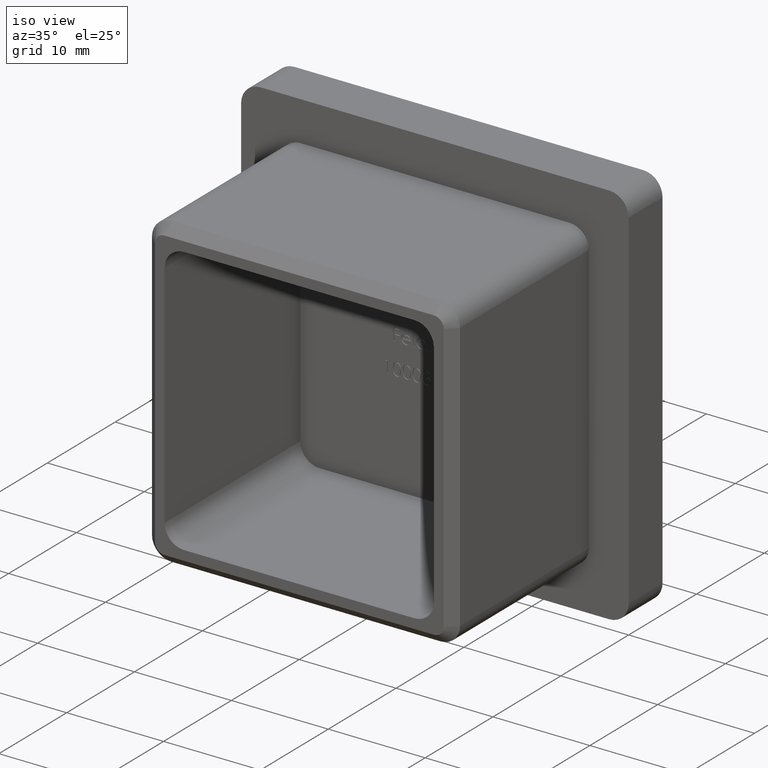
[diagram: clean part render]
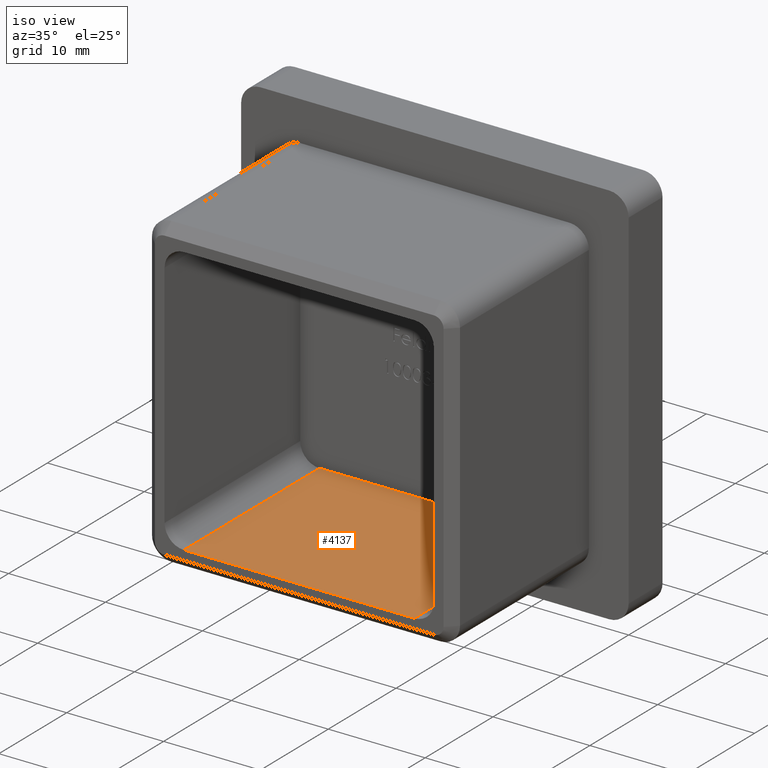
[diagram: same view with one face highlighted and labeled with its STEP entity id]
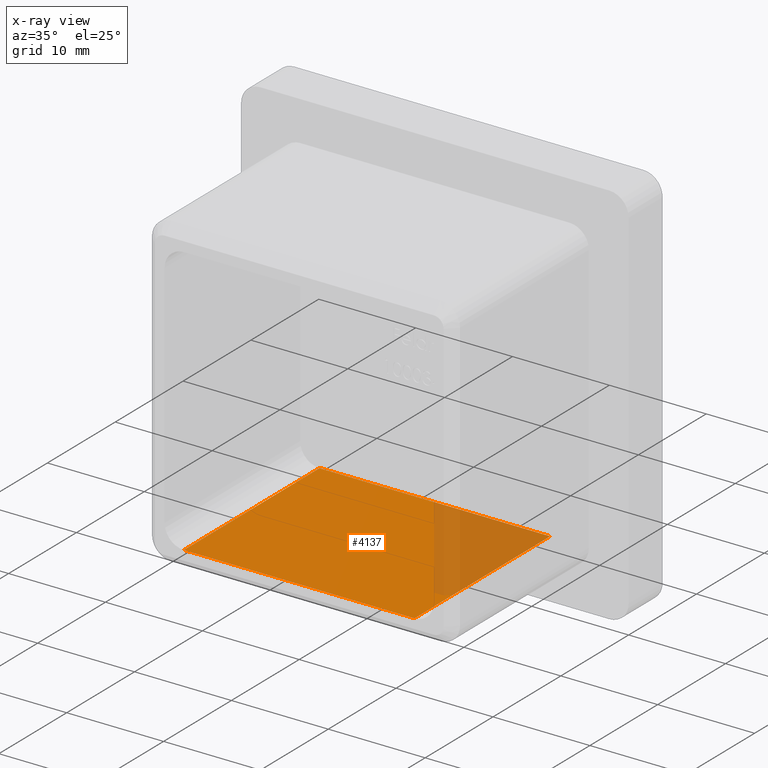
[diagram: x-ray of the same camera — body ghosted, the highlighted face saturated]
A machine part, iso view. The second image highlights one B-rep face of the part: STEP entity #4137.
The next image is the same camera in x-ray: the body ghosted, the highlighted face saturated — about 21% of this face is hidden behind the body in this view.
In plain terms, the highlighted planar face has unit normal (-0, 0, 1).
Its self-contained STEP definition (entity closure, byte-faithful):
#359 = CARTESIAN_POINT ( 'NONE',  ( -11.90000000000000000, -20.00000000000000000, -13.90000000000000000 ) ) ;
#376 = DIRECTION ( 'NONE',  ( -0.0000000000000000000, 0.0000000000000000000, 1.000000000000000000 ) ) ;
#393 = LINE ( 'NONE', #7024, #12382 ) ;
#433 = PLANE ( 'NONE',  #8390 ) ;
#1486 = VERTEX_POINT ( 'NONE', #3148 ) ;
#2342 = CARTESIAN_POINT ( 'NONE',  ( -11.90000000000000000, -20.00000000000000000, -13.90000000000000000 ) ) ;
#2538 = DIRECTION ( 'NONE',  ( 1.000000000000000000, 0.0000000000000000000, 0.0000000000000000000 ) ) ;
#2552 = DIRECTION ( 'NONE',  ( 1.000000000000000000, 0.0000000000000000000, 0.0000000000000000000 ) ) ;
#2659 = ORIENTED_EDGE ( 'NONE', *, *, #3570, .T. ) ;
#2964 = EDGE_CURVE ( 'NONE', #6945, #12386, #393, .T. ) ;
#3148 = CARTESIAN_POINT ( 'NONE',  ( 11.90000000000000200, -20.00000000000000000, -13.90000000000000000 ) ) ;
#3287 = VECTOR ( 'NONE', #10255, 1000.000000000000000 ) ;
#3444 = EDGE_CURVE ( 'NONE', #1486, #12386, #8555, .T. ) ;
#3570 = EDGE_CURVE ( 'NONE', #7833, #1486, #6360, .T. ) ;
#4137 = ADVANCED_FACE ( 'NONE', ( #6531 ), #433, .T. ) ;
#4216 = CARTESIAN_POINT ( 'NONE',  ( 11.90000000000000200, 0.0000000000000000000, -13.90000000000000000 ) ) ;
#4228 = ORIENTED_EDGE ( 'NONE', *, *, #3444, .T. ) ;
#4320 = VECTOR ( 'NONE', #7065, 1000.000000000000000 ) ;
#6260 = CARTESIAN_POINT ( 'NONE',  ( -13.90000000000000000, -20.00000000000000000, -13.90000000000000000 ) ) ;
#6360 = LINE ( 'NONE', #8248, #9092 ) ;
#6531 = FACE_OUTER_BOUND ( 'NONE', #9478, .T. ) ;
#6945 = VERTEX_POINT ( 'NONE', #9716 ) ;
#7024 = CARTESIAN_POINT ( 'NONE',  ( -13.90000000000000000, -0.0000000000000000000, -13.90000000000000000 ) ) ;
#7065 = DIRECTION ( 'NONE',  ( -0.0000000000000000000, -1.000000000000000000, 0.0000000000000000000 ) ) ;
#7228 = ORIENTED_EDGE ( 'NONE', *, *, #2964, .F. ) ;
#7416 = LINE ( 'NONE', #2342, #4320 ) ;
#7833 = VERTEX_POINT ( 'NONE', #359 ) ;
#8248 = CARTESIAN_POINT ( 'NONE',  ( -13.90000000000000000, -20.00000000000000000, -13.90000000000000000 ) ) ;
#8390 = AXIS2_PLACEMENT_3D ( 'NONE', #6260, #376, #14398 ) ;
#8430 = ORIENTED_EDGE ( 'NONE', *, *, #12079, .T. ) ;
#8555 = LINE ( 'NONE', #9094, #3287 ) ;
#9092 = VECTOR ( 'NONE', #2538, 1000.000000000000000 ) ;
#9094 = CARTESIAN_POINT ( 'NONE',  ( 11.90000000000000200, 0.0000000000000000000, -13.90000000000000000 ) ) ;
#9478 = EDGE_LOOP ( 'NONE', ( #2659, #4228, #7228, #8430 ) ) ;
#9716 = CARTESIAN_POINT ( 'NONE',  ( -11.90000000000000000, 0.0000000000000000000, -13.90000000000000000 ) ) ;
#10255 = DIRECTION ( 'NONE',  ( 0.0000000000000000000, 1.000000000000000000, -0.0000000000000000000 ) ) ;
#12079 = EDGE_CURVE ( 'NONE', #6945, #7833, #7416, .T. ) ;
#12382 = VECTOR ( 'NONE', #2552, 1000.000000000000000 ) ;
#12386 = VERTEX_POINT ( 'NONE', #4216 ) ;
#14398 = DIRECTION ( 'NONE',  ( 1.000000000000000000, 0.0000000000000000000, 0.0000000000000000000 ) ) ;